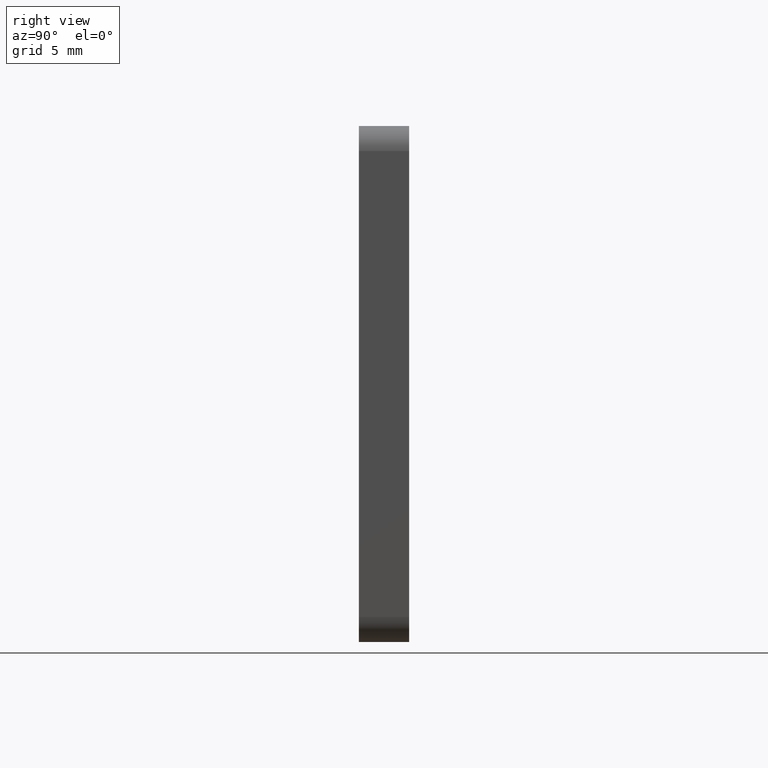
[diagram: clean part render]
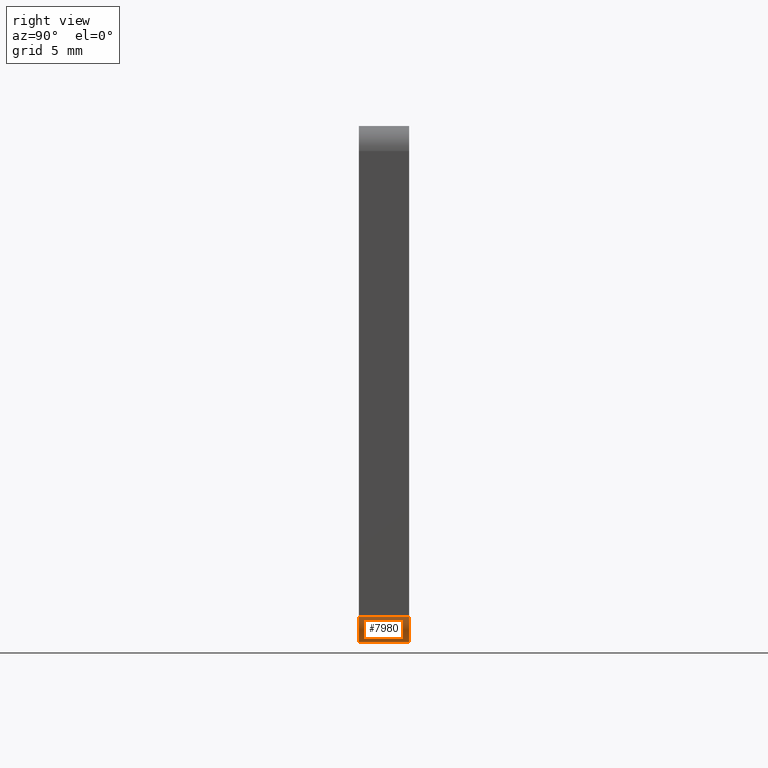
[diagram: same view with one face highlighted and labeled with its STEP entity id]
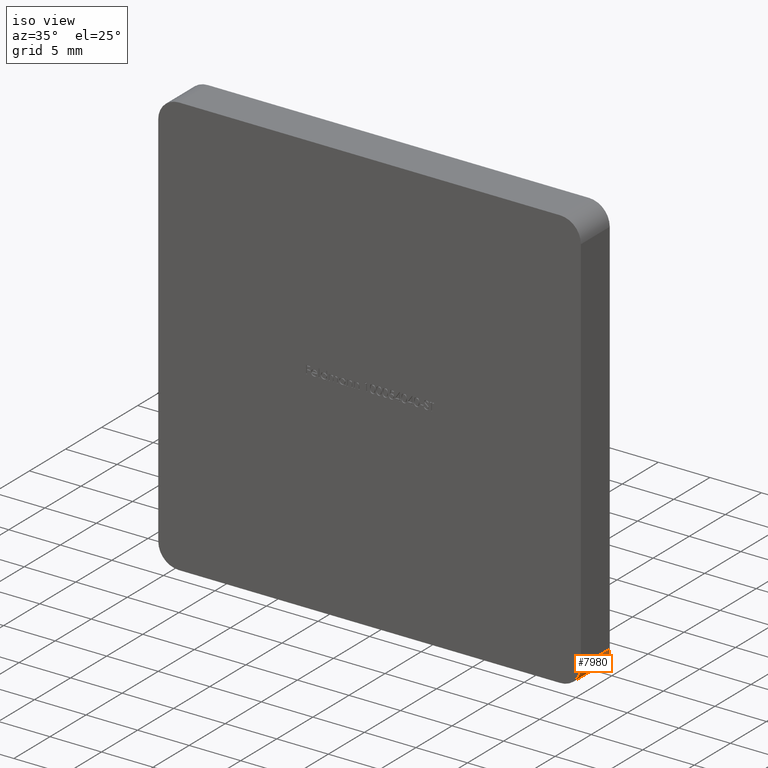
[diagram: same view with one face highlighted and labeled with its STEP entity id]
A machine part, right view. The second image highlights one B-rep face of the part: STEP entity #7980.
A second angle (iso view) of the same face is appended — the face is thin or edge-on in the first view.
In plain terms, the highlighted cylindrical surface (edge-blend (fillet) strip) has radius 2 mm, axis along (0, -1, 0).
Its self-contained STEP definition (entity closure, byte-faithful):
#245 = VECTOR ( 'NONE', #7141, 1000.000000000000000 ) ;
#621 = EDGE_CURVE ( 'NONE', #13598, #13920, #4240, .T. ) ;
#1879 = CYLINDRICAL_SURFACE ( 'NONE', #12278, 2.000000000000001776 ) ;
#1996 = AXIS2_PLACEMENT_3D ( 'NONE', #10363, #3370, #10225 ) ;
#2219 = CARTESIAN_POINT ( 'NONE',  ( 18.49999999999999645, 4.000000000000000000, -18.49999999999999645 ) ) ;
#2435 = DIRECTION ( 'NONE',  ( 0.000000000000000000, 0.000000000000000000, 1.000000000000000000 ) ) ;
#3143 = CIRCLE ( 'NONE', #1996, 2.000000000000001776 ) ;
#3246 = CARTESIAN_POINT ( 'NONE',  ( 20.49999999999999645, 4.000000000000000000, -18.49999999999999645 ) ) ;
#3339 = DIRECTION ( 'NONE',  ( 0.000000000000000000, -1.000000000000000000, 0.000000000000000000 ) ) ;
#3370 = DIRECTION ( 'NONE',  ( -0.000000000000000000, -1.000000000000000000, -0.000000000000000000 ) ) ;
#3517 = CARTESIAN_POINT ( 'NONE',  ( 18.49999999999999645, 0.000000000000000000, -20.49999999999999645 ) ) ;
#4240 = LINE ( 'NONE', #3246, #5519 ) ;
#4524 = CIRCLE ( 'NONE', #9434, 2.000000000000001776 ) ;
#5494 = VERTEX_POINT ( 'NONE', #3517 ) ;
#5519 = VECTOR ( 'NONE', #13622, 1000.000000000000000 ) ;
#5942 = EDGE_CURVE ( 'NONE', #13920, #12600, #4524, .T. ) ;
#7070 = ORIENTED_EDGE ( 'NONE', *, *, #14039, .F. ) ;
#7084 = DIRECTION ( 'NONE',  ( 0.000000000000000000, 1.000000000000000000, 0.000000000000000000 ) ) ;
#7141 = DIRECTION ( 'NONE',  ( 0.000000000000000000, -1.000000000000000000, 0.000000000000000000 ) ) ;
#7147 = ORIENTED_EDGE ( 'NONE', *, *, #7598, .F. ) ;
#7598 = EDGE_CURVE ( 'NONE', #5494, #13598, #3143, .T. ) ;
#7939 = CARTESIAN_POINT ( 'NONE',  ( 20.49999999999999645, 0.000000000000000000, -18.49999999999999645 ) ) ;
#7980 = ADVANCED_FACE ( 'NONE', ( #12466 ), #1879, .T. ) ;
#8243 = LINE ( 'NONE', #12803, #245 ) ;
#8863 = ORIENTED_EDGE ( 'NONE', *, *, #5942, .F. ) ;
#9434 = AXIS2_PLACEMENT_3D ( 'NONE', #14014, #7084, #2435 ) ;
#10225 = DIRECTION ( 'NONE',  ( 0.000000000000000000, 0.000000000000000000, 1.000000000000000000 ) ) ;
#10243 = CARTESIAN_POINT ( 'NONE',  ( 18.49999999999999645, 4.000000000000000000, -20.49999999999999645 ) ) ;
#10363 = CARTESIAN_POINT ( 'NONE',  ( 18.49999999999999645, 0.000000000000000000, -18.49999999999999645 ) ) ;
#10721 = EDGE_LOOP ( 'NONE', ( #8863, #10854, #7147, #7070 ) ) ;
#10854 = ORIENTED_EDGE ( 'NONE', *, *, #621, .F. ) ;
#11235 = CARTESIAN_POINT ( 'NONE',  ( 20.49999999999999645, 4.000000000000000000, -18.49999999999999645 ) ) ;
#12278 = AXIS2_PLACEMENT_3D ( 'NONE', #2219, #3339, #12635 ) ;
#12466 = FACE_OUTER_BOUND ( 'NONE', #10721, .T. ) ;
#12600 = VERTEX_POINT ( 'NONE', #10243 ) ;
#12635 = DIRECTION ( 'NONE',  ( 0.000000000000000000, 0.000000000000000000, -1.000000000000000000 ) ) ;
#12803 = CARTESIAN_POINT ( 'NONE',  ( 18.49999999999999645, 4.000000000000000000, -20.49999999999999645 ) ) ;
#13598 = VERTEX_POINT ( 'NONE', #7939 ) ;
#13622 = DIRECTION ( 'NONE',  ( -0.000000000000000000, 1.000000000000000000, -0.000000000000000000 ) ) ;
#13920 = VERTEX_POINT ( 'NONE', #11235 ) ;
#14014 = CARTESIAN_POINT ( 'NONE',  ( 18.49999999999999645, 4.000000000000000000, -18.49999999999999645 ) ) ;
#14039 = EDGE_CURVE ( 'NONE', #12600, #5494, #8243, .T. ) ;